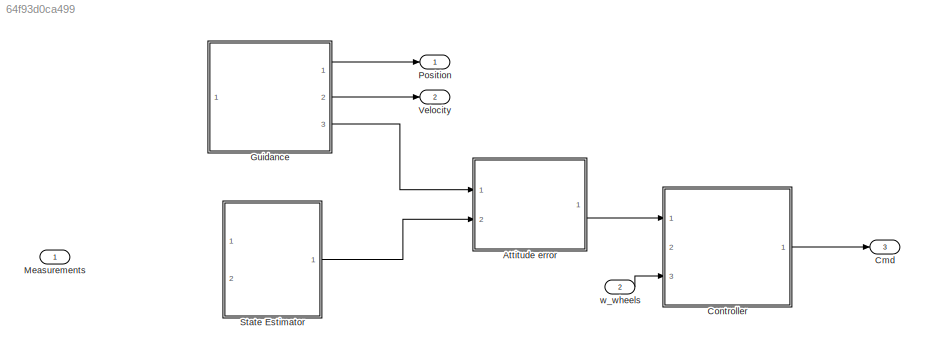
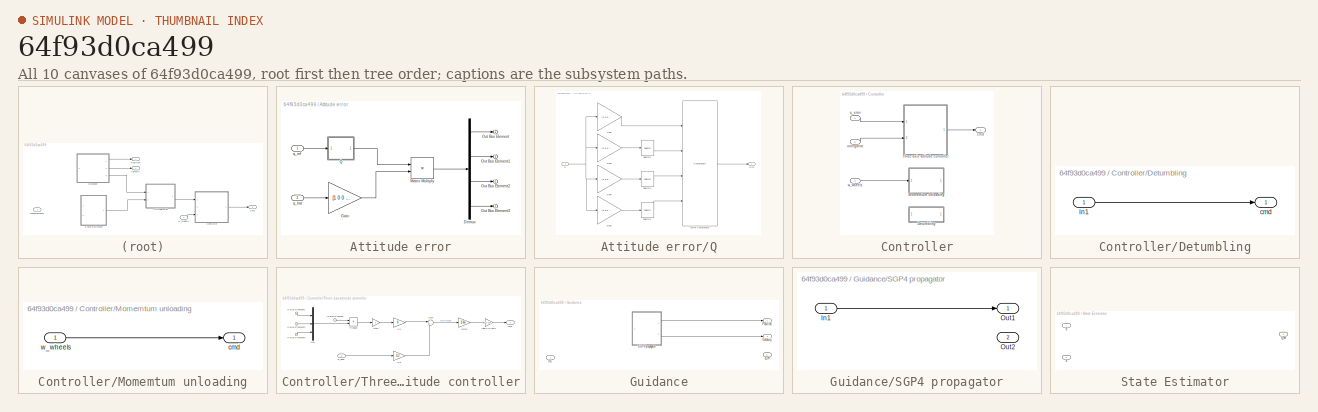
[diagram: thumbnail index - all 10 canvases of the model, root first then tree order]
MODEL slx_64f93d0ca499
KIND model
CONFIG AbsTol = auto
CONFIG EnableMultiTasking = off
CONFIG FixedStep = auto
CONFIG MaxStep = auto
CONFIG MinStep = auto
CONFIG RelTol = 1e-3
CONFIG SampleTimeConstraint = Unconstrained
CONFIG Solver = VariableStepAuto
CONFIG SolverName = VariableStepAuto
CONFIG StartTime = 0.0
CONFIG StopTime = 10.0
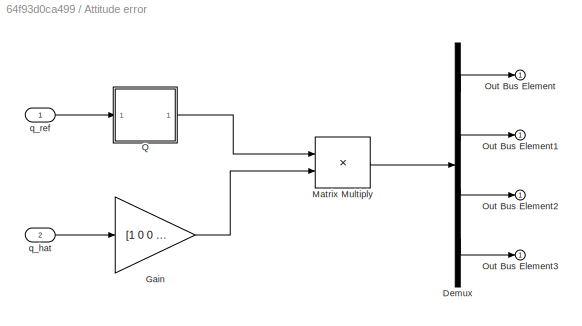
BLOCK [SubSystem] Attitude error
  Ports = [2, 1]
  RequestExecContextInheritance = off
BLOCK [Demux] Attitude error/Demux
  DisplayOption = bar
  Ports = [1, 4]
BLOCK [Gain] Attitude error/Gain
  Gain = [1 0 0 0;0 -1 0 0;0 0 -1 0;0 0 0 -1]
  Multiplication = Matrix(K*u)
  OutDataTypeStr = Inherit: Inherit via internal rule
  ParamDataTypeStr = Inherit: Inherit via internal rule
  SaturateOnIntegerOverflow = off
BLOCK [Product] Attitude error/Matrix Multiply
  InputSameDT = off
  Multiplication = Matrix(*)
  OutDataTypeStr = Inherit: Inherit via internal rule
  Ports = [2, 1]
  RndMeth = Floor
  SaturateOnIntegerOverflow = off
BLOCK [Outport] Attitude error/Out Bus Element
  IconDisplay = Port number
BLOCK [Outport] Attitude error/Out Bus Element1
  IconDisplay = Port number
BLOCK [Outport] Attitude error/Out Bus Element2
  IconDisplay = Port number
BLOCK [Outport] Attitude error/Out Bus Element3
  IconDisplay = Port number
BLOCK [SubSystem] Attitude error/Q
  Ports = [1, 1]
  RequestExecContextInheritance = off
BLOCK [Gain] Attitude error/Q/Gain
  Gain = [1 0 0 0;0 1 0 0;0 0 1 0;0 0 0 1]
  Multiplication = Matrix(K*u)
  OutDataTypeStr = Inherit: Inherit via internal rule
  ParamDataTypeStr = Inherit: Inherit via internal rule
  SaturateOnIntegerOverflow = off
BLOCK [Gain] Attitude error/Q/Gain1
  Gain = [1 0 0 0;0 -1 0 0;0 0 -1 0;0 0 0 1]
  Multiplication = Matrix(K*u)
  OutDataTypeStr = Inherit: Inherit via internal rule
  ParamDataTypeStr = Inherit: Inherit via internal rule
  SaturateOnIntegerOverflow = off
BLOCK [Gain] Attitude error/Q/Gain2
  Gain = [1 0 0 0;0 -1 0 0;0 0 1 0;0 0 0 -1]
  Multiplication = Matrix(K*u)
  OutDataTypeStr = Inherit: Inherit via internal rule
  ParamDataTypeStr = Inherit: Inherit via internal rule
  SaturateOnIntegerOverflow = off
BLOCK [Gain] Attitude error/Q/Gain4
  Gain = [1 0 0 0;0 1 0 0;0 0 -1 0;0 0 0 -1]
  Multiplication = Matrix(K*u)
  OutDataTypeStr = Inherit: Inherit via internal rule
  ParamDataTypeStr = Inherit: Inherit via internal rule
  SaturateOnIntegerOverflow = off
BLOCK [Concatenate] Attitude error/Q/Matrix Concatenate
  ConcatenateDimension = 2
  Mode = Multidimensional array
  NumInputs = 4
  Ports = [4, 1]
BLOCK [Outport] Attitude error/Q/Q(q)
  IconDisplay = Port number
BLOCK [Selector] Attitude error/Q/Selector1
  IndexOptions = Index vector (dialog)
  Indices = [4 3 2 1]
  InputPortWidth = 4
  OutputSizes = 1
  Ports = [1, 1]
BLOCK [Selector] Attitude error/Q/Selector2
  IndexOptions = Index vector (dialog)
  Indices = [2 1 4 3]
  InputPortWidth = 4
  OutputSizes = 1
  Ports = [1, 1]
BLOCK [Selector] Attitude error/Q/Selector4
  IndexOptions = Index vector (dialog)
  Indices = [3 4 1 2]
  InputPortWidth = 4
  OutputSizes = 1
  Ports = [1, 1]
BLOCK [Inport] Attitude error/Q/q
  IconDisplay = Port number
BLOCK [Inport] Attitude error/q_hat
  IconDisplay = Port number
  Port = 2
BLOCK [Inport] Attitude error/q_ref
  IconDisplay = Port number
BLOCK [Outport] Cmd
  IconDisplay = Port number
  Port = 3
BLOCK [SubSystem] Controller
  Ports = [3, 1]
  RequestExecContextInheritance = off
BLOCK [SubSystem] Controller/Detumbling
  Ports = [1, 1]
  RequestExecContextInheritance = off
BLOCK [Inport] Controller/Detumbling/In1
  IconDisplay = Port number
BLOCK [Outport] Controller/Detumbling/cmd
  IconDisplay = Port number
BLOCK [SubSystem] Controller/Momemtum unloading
  Ports = [1, 1]
  RequestExecContextInheritance = off
BLOCK [Outport] Controller/Momemtum unloading/cmd
  IconDisplay = Port number
BLOCK [Inport] Controller/Momemtum unloading/w_wheels
  IconDisplay = Port number
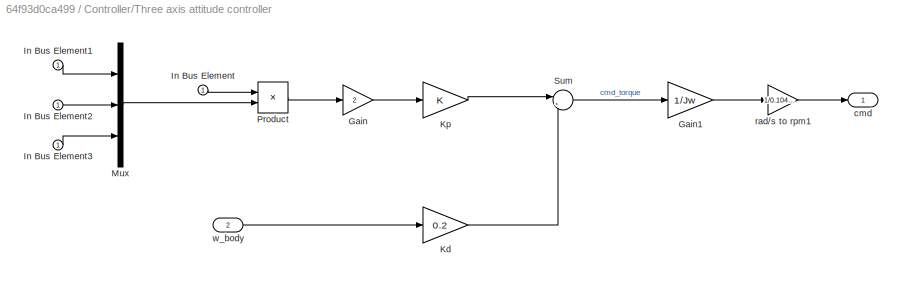
BLOCK [SubSystem] Controller/Three axis attitude controller
  Ports = [2, 1]
  RequestExecContextInheritance = off
BLOCK [Gain] Controller/Three axis attitude controller/Gain
  Gain = 2
  OutDataTypeStr = Inherit: Inherit via internal rule
  ParamDataTypeStr = Inherit: Inherit via internal rule
  SaturateOnIntegerOverflow = off
BLOCK [Gain] Controller/Three axis attitude controller/Gain1
  Gain = 1/Jw
  OutDataTypeStr = Inherit: Inherit via internal rule
  ParamDataTypeStr = Inherit: Inherit via internal rule
  SaturateOnIntegerOverflow = off
BLOCK [Inport] Controller/Three axis attitude controller/In Bus Element
  IconDisplay = Port number
BLOCK [Inport] Controller/Three axis attitude controller/In Bus Element1
  IconDisplay = Port number
BLOCK [Inport] Controller/Three axis attitude controller/In Bus Element2
  IconDisplay = Port number
BLOCK [Inport] Controller/Three axis attitude controller/In Bus Element3
  IconDisplay = Port number
BLOCK [Gain] Controller/Three axis attitude controller/Kd
  Gain = 0.2
  OutDataTypeStr = Inherit: Inherit via internal rule
  ParamDataTypeStr = Inherit: Inherit via internal rule
  SaturateOnIntegerOverflow = off
BLOCK [Gain] Controller/Three axis attitude controller/Kp
  OutDataTypeStr = Inherit: Inherit via internal rule
  ParamDataTypeStr = Inherit: Inherit via internal rule
  SaturateOnIntegerOverflow = off
BLOCK [Mux] Controller/Three axis attitude controller/Mux
  DisplayOption = bar
  Inputs = 3
  Ports = [3, 1]
BLOCK [Product] Controller/Three axis attitude controller/Product
  InputSameDT = off
  OutDataTypeStr = Inherit: Inherit via internal rule
  Ports = [2, 1]
  RndMeth = Floor
  SaturateOnIntegerOverflow = off
BLOCK [Sum] Controller/Three axis attitude controller/Sum
  IconShape = round
  InputSameDT = off
  Inputs = |++
  OutDataTypeStr = Inherit: Inherit via internal rule
  Ports = [2, 1]
  SaturateOnIntegerOverflow = off
BLOCK [Outport] Controller/Three axis attitude controller/cmd 
  IconDisplay = Port number
BLOCK [Gain] Controller/Three axis attitude controller/rad//s to rpm1
  Gain = 1/0.104719755
  OutDataTypeStr = Inherit: Inherit via internal rule
  ParamDataTypeStr = Inherit: Inherit via internal rule
  SaturateOnIntegerOverflow = off
BLOCK [Inport] Controller/Three axis attitude controller/w_body
  IconDisplay = Port number
  Port = 2
BLOCK [Outport] Controller/cmd
  IconDisplay = Port number
BLOCK [Inport] Controller/omegahat
  IconDisplay = Port number
  Port = 2
BLOCK [Inport] Controller/q_error
  IconDisplay = Port number
BLOCK [Inport] Controller/w_wheels
  IconDisplay = Port number
  Port = 3
BLOCK [SubSystem] Guidance
  Ports = [1, 3]
  RequestExecContextInheritance = off
BLOCK [Inport] Guidance/In1
  IconDisplay = Port number
BLOCK [Outport] Guidance/Position
  IconDisplay = Port number
  VectorParamsAs1DForOutWhenUnconnected = on
BLOCK [SubSystem] Guidance/SGP4 propagator
  Ports = [1, 2]
  RequestExecContextInheritance = off
BLOCK [Inport] Guidance/SGP4 propagator/In1
  IconDisplay = Port number
BLOCK [Outport] Guidance/SGP4 propagator/Out1
  IconDisplay = Port number
  VectorParamsAs1DForOutWhenUnconnected = on
BLOCK [Outport] Guidance/SGP4 propagator/Out2
  IconDisplay = Port number
  Port = 2
BLOCK [Outport] Guidance/Velocity
  IconDisplay = Port number
  Port = 2
BLOCK [Outport] Guidance/q_ref
  IconDisplay = Port number
  Port = 3
  VectorParamsAs1DForOutWhenUnconnected = on
BLOCK [Inport] Measurements
  IconDisplay = Port number
BLOCK [Outport] Position
  IconDisplay = Port number
BLOCK [SubSystem] State Estimator
  Ports = [2, 1]
  RequestExecContextInheritance = off
BLOCK [Inport] State Estimator/B
  IconDisplay = Port number
BLOCK [Inport] State Estimator/S
  IconDisplay = Port number
  Port = 2
BLOCK [Outport] State Estimator/q_hat
  IconDisplay = Port number
BLOCK [Outport] Velocity
  IconDisplay = Port number
  Port = 2
BLOCK [Inport] w_wheels
  IconDisplay = Port number
  Port = 2
LINE Attitude error/Demux:1 -> Attitude error/Out Bus Element:1
LINE Attitude error/Demux:2 -> Attitude error/Out Bus Element1:1
LINE Attitude error/Demux:3 -> Attitude error/Out Bus Element2:1
LINE Attitude error/Demux:4 -> Attitude error/Out Bus Element3:1
LINE Attitude error/Gain:1 -> Attitude error/Matrix Multiply:2
LINE Attitude error/Matrix Multiply:1 -> Attitude error/Demux:1
LINE Attitude error/Q/Gain1:1 -> Attitude error/Q/Selector2:1
LINE Attitude error/Q/Gain2:1 -> Attitude error/Q/Selector1:1
LINE Attitude error/Q/Gain4:1 -> Attitude error/Q/Selector4:1
LINE Attitude error/Q/Gain:1 -> Attitude error/Q/Matrix Concatenate:1
LINE Attitude error/Q/Matrix Concatenate:1 -> Attitude error/Q/Q(q):1
LINE Attitude error/Q/Selector1:1 -> Attitude error/Q/Matrix Concatenate:4
LINE Attitude error/Q/Selector2:1 -> Attitude error/Q/Matrix Concatenate:2
LINE Attitude error/Q/Selector4:1 -> Attitude error/Q/Matrix Concatenate:3
NET Attitude error/Q/q:1 -> Attitude error/Q/Gain1:1, Attitude error/Q/Gain2:1, Attitude error/Q/Gain4:1, Attitude error/Q/Gain:1
LINE Attitude error/Q:1 -> Attitude error/Matrix Multiply:1
LINE Attitude error/q_hat:1 -> Attitude error/Gain:1
LINE Attitude error/q_ref:1 -> Attitude error/Q:1
LINE Attitude error:1 -> Controller:1
LINE Controller/Detumbling/In1:1 -> Controller/Detumbling/cmd:1
LINE Controller/Momemtum unloading/w_wheels:1 -> Controller/Momemtum unloading/cmd:1
LINE Controller/Three axis attitude controller/Gain1:1 -> Controller/Three axis attitude controller/rad//s to rpm1:1
LINE Controller/Three axis attitude controller/Gain:1 -> Controller/Three axis attitude controller/Kp:1
LINE Controller/Three axis attitude controller/In Bus Element1:1 -> Controller/Three axis attitude controller/Mux:1
LINE Controller/Three axis attitude controller/In Bus Element2:1 -> Controller/Three axis attitude controller/Mux:2
LINE Controller/Three axis attitude controller/In Bus Element3:1 -> Controller/Three axis attitude controller/Mux:3
LINE Controller/Three axis attitude controller/In Bus Element:1 -> Controller/Three axis attitude controller/Product:1
LINE Controller/Three axis attitude controller/Kd:1 -> Controller/Three axis attitude controller/Sum:2
LINE Controller/Three axis attitude controller/Kp:1 -> Controller/Three axis attitude controller/Sum:1
LINE Controller/Three axis attitude controller/Mux:1 -> Controller/Three axis attitude controller/Product:2
LINE Controller/Three axis attitude controller/Product:1 -> Controller/Three axis attitude controller/Gain:1
LINE Controller/Three axis attitude controller/Sum:1 -> Controller/Three axis attitude controller/Gain1:1
LINE Controller/Three axis attitude controller/rad//s to rpm1:1 -> Controller/Three axis attitude controller/cmd :1
LINE Controller/Three axis attitude controller/w_body:1 -> Controller/Three axis attitude controller/Kd:1
LINE Controller/Three axis attitude controller:1 -> Controller/cmd:1
LINE Controller/omegahat:1 -> Controller/Three axis attitude controller:2
LINE Controller/q_error:1 -> Controller/Three axis attitude controller:1
LINE Controller/w_wheels:1 -> Controller/Momemtum unloading:1
LINE Controller:1 -> Cmd:1
LINE Guidance/SGP4 propagator/In1:1 -> Guidance/SGP4 propagator/Out1:1
LINE Guidance/SGP4 propagator:1 -> Guidance/Position:1
LINE Guidance/SGP4 propagator:2 -> Guidance/Velocity:1
LINE Guidance:1 -> Position:1
LINE Guidance:2 -> Velocity:1
LINE Guidance:3 -> Attitude error:1
LINE State Estimator:1 -> Attitude error:2
LINE w_wheels:1 -> Controller:3
note: NET lines group one-source signal fan-out (src -> all destinations, sorted); 1:1 wires keep LINE
